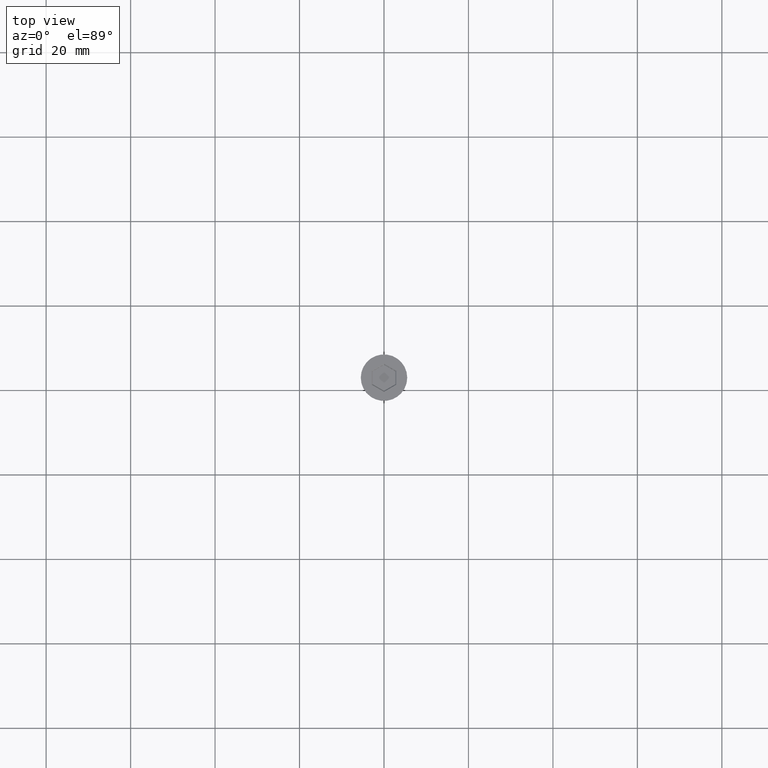
[diagram: clean part render]
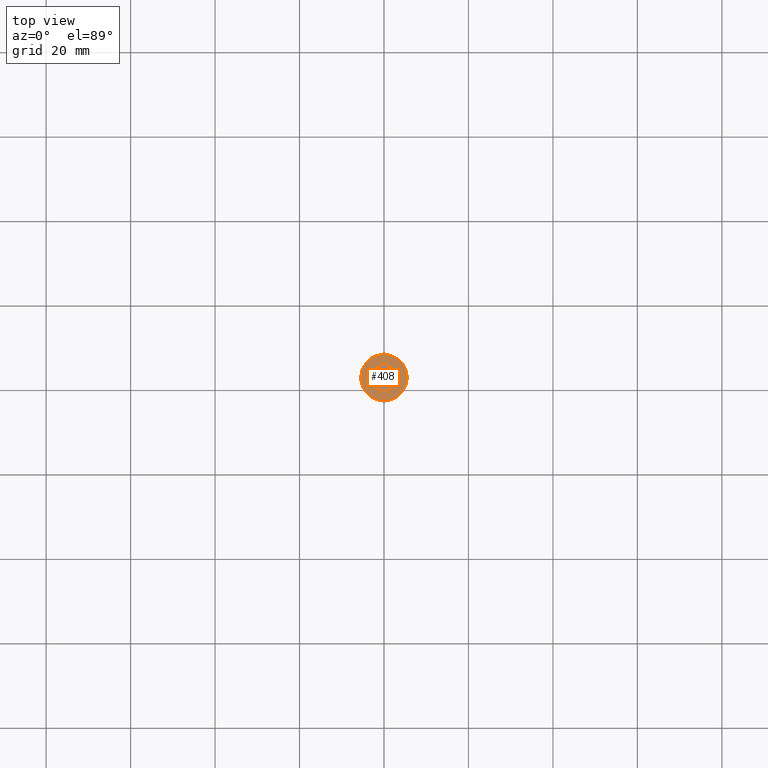
[diagram: same view with one face highlighted and labeled with its STEP entity id]
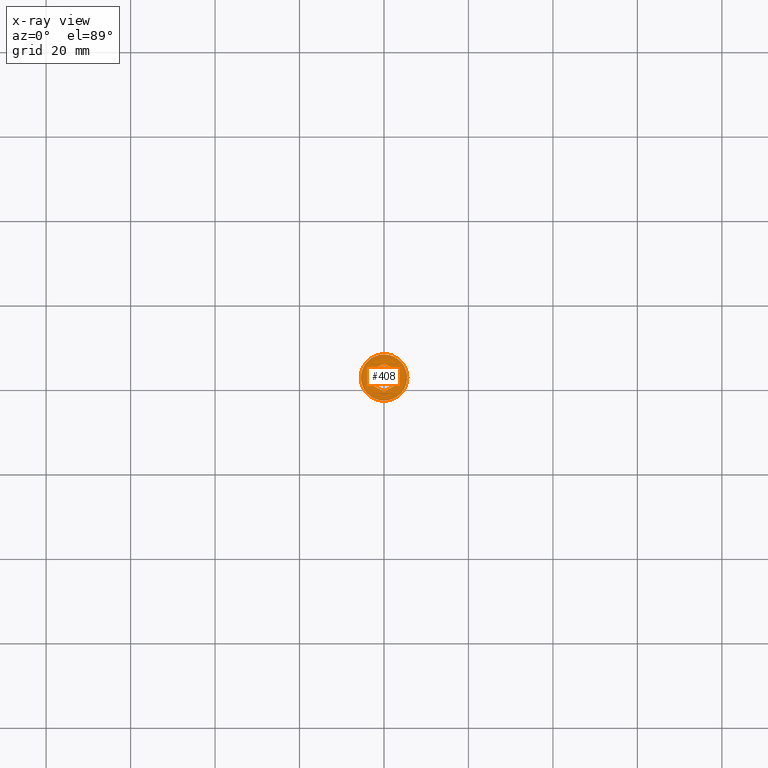
[diagram: x-ray of the same camera — body ghosted, the highlighted face saturated]
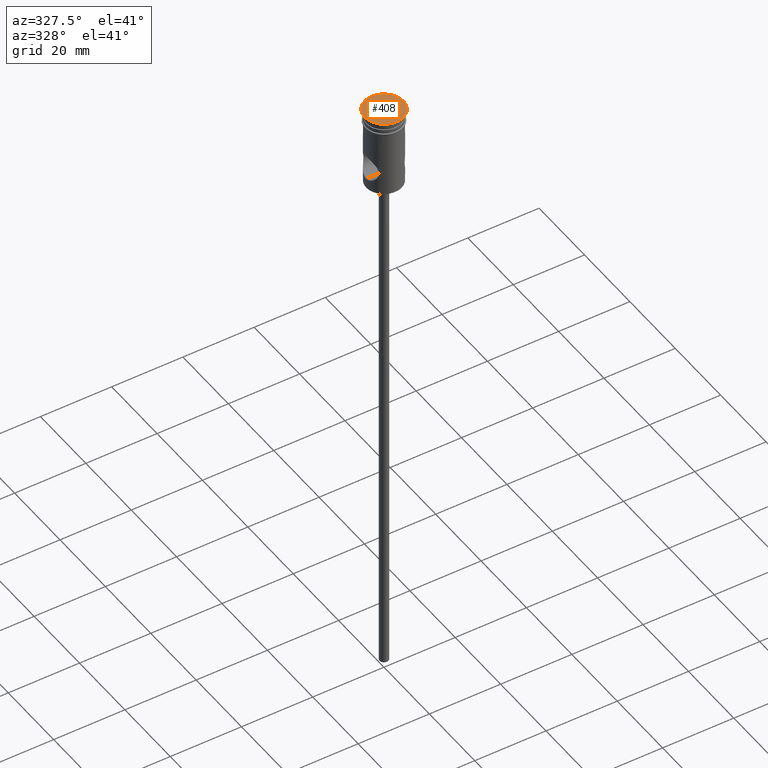
[diagram: same view with one face highlighted and labeled with its STEP entity id]
A machine part, top view. The second image highlights one B-rep face of the part: STEP entity #408.
The next image is the same camera in x-ray: the body ghosted, the highlighted face saturated — about 0% of this face is hidden behind the body in this view.
A second angle (auxiliary view) of the same face is appended — the face is thin or edge-on in the first view.
In plain terms, the highlighted planar face has unit normal (0, -0, 1).
Its self-contained STEP definition (entity closure, byte-faithful):
#60 = CARTESIAN_POINT ( 'NONE',  ( -2.799999999999997158, -1.732050807568871864, 0.000000000000000000 ) ) ;
#88 = VERTEX_POINT ( 'NONE', #1032 ) ;
#147 = LINE ( 'NONE', #505, #1178 ) ;
#168 = VECTOR ( 'NONE', #1218, 1000.000000000000000 ) ;
#169 = CARTESIAN_POINT ( 'NONE',  ( -2.899999999999994138, -1.674315780649910934, 0.000000000000000000 ) ) ;
#170 = VERTEX_POINT ( 'NONE', #934 ) ;
#177 = DIRECTION ( 'NONE',  ( -0.000000000000000000, -0.000000000000000000, 1.000000000000000000 ) ) ;
#184 = CARTESIAN_POINT ( 'NONE',  ( -2.899999999999994138, 1.558845726811988852, 0.000000000000000000 ) ) ;
#189 = EDGE_CURVE ( 'NONE', #88, #905, #147, .T. ) ;
#196 = CARTESIAN_POINT ( 'NONE',  ( -9.683804684061200344E-16, 3.348631561299821868, 0.000000000000000000 ) ) ;
#227 = CARTESIAN_POINT ( 'NONE',  ( 5.500000000000000000, 0.000000000000000000, 0.000000000000000000 ) ) ;
#242 = EDGE_LOOP ( 'NONE', ( #396, #1252 ) ) ;
#294 = LINE ( 'NONE', #525, #1220 ) ;
#299 = DIRECTION ( 'NONE',  ( 1.000000000000000000, 0.000000000000000000, 0.000000000000000000 ) ) ;
#330 = VECTOR ( 'NONE', #946, 1000.000000000000114 ) ;
#347 = VERTEX_POINT ( 'NONE', #169 ) ;
#370 = FACE_BOUND ( 'NONE', #1195, .T. ) ;
#396 = ORIENTED_EDGE ( 'NONE', *, *, #1286, .T. ) ;
#405 = VERTEX_POINT ( 'NONE', #722 ) ;
#408 = ADVANCED_FACE ( 'NONE', ( #370, #1163 ), #737, .T. ) ;
#414 = LINE ( 'NONE', #1322, #168 ) ;
#417 = ORIENTED_EDGE ( 'NONE', *, *, #1420, .T. ) ;
#456 = CARTESIAN_POINT ( 'NONE',  ( 0.000000000000000000, 0.000000000000000000, 0.000000000000000000 ) ) ;
#467 = VECTOR ( 'NONE', #1439, 1000.000000000000000 ) ;
#472 = EDGE_CURVE ( 'NONE', #405, #504, #414, .T. ) ;
#492 = VERTEX_POINT ( 'NONE', #652 ) ;
#504 = VERTEX_POINT ( 'NONE', #196 ) ;
#505 = CARTESIAN_POINT ( 'NONE',  ( 0.09999999999999654998, -3.290896534380861382, 0.000000000000000000 ) ) ;
#525 = CARTESIAN_POINT ( 'NONE',  ( 2.899999999999992362, -1.558845726811989296, 0.000000000000000000 ) ) ;
#561 = ORIENTED_EDGE ( 'NONE', *, *, #1268, .T. ) ;
#593 = ORIENTED_EDGE ( 'NONE', *, *, #842, .T. ) ;
#595 = CARTESIAN_POINT ( 'NONE',  ( 0.000000000000000000, 0.000000000000000000, 0.000000000000000000 ) ) ;
#614 = DIRECTION ( 'NONE',  ( 0.000000000000000000, -0.000000000000000000, 1.000000000000000000 ) ) ;
#644 = LINE ( 'NONE', #184, #1261 ) ;
#649 = DIRECTION ( 'NONE',  ( 0.000000000000000000, 1.000000000000000000, 0.000000000000000000 ) ) ;
#652 = CARTESIAN_POINT ( 'NONE',  ( 2.899999999999992806, 1.674315780649911378, 0.000000000000000000 ) ) ;
#654 = AXIS2_PLACEMENT_3D ( 'NONE', #988, #1433, #766 ) ;
#661 = CARTESIAN_POINT ( 'NONE',  ( -4.552601062339046804E-16, -3.348631561299821868, 0.000000000000000000 ) ) ;
#688 = DIRECTION ( 'NONE',  ( -0.8660254037844387076, -0.4999999999999998890, 0.000000000000000000 ) ) ;
#704 = EDGE_CURVE ( 'NONE', #170, #1190, #863, .T. ) ;
#722 = CARTESIAN_POINT ( 'NONE',  ( -2.899999999999994138, 1.674315780649911600, 0.000000000000000000 ) ) ;
#737 = PLANE ( 'NONE',  #930 ) ;
#766 = DIRECTION ( 'NONE',  ( 1.000000000000000000, 0.000000000000000000, 0.000000000000000000 ) ) ;
#824 = ORIENTED_EDGE ( 'NONE', *, *, #189, .T. ) ;
#842 = EDGE_CURVE ( 'NONE', #905, #347, #1171, .T. ) ;
#863 = CIRCLE ( 'NONE', #1028, 5.500000000000000000 ) ;
#905 = VERTEX_POINT ( 'NONE', #661 ) ;
#916 = ORIENTED_EDGE ( 'NONE', *, *, #472, .T. ) ;
#930 = AXIS2_PLACEMENT_3D ( 'NONE', #595, #614, #1292 ) ;
#934 = CARTESIAN_POINT ( 'NONE',  ( -5.500000000000000000, 6.735557395310442023E-16, 0.000000000000000000 ) ) ;
#946 = DIRECTION ( 'NONE',  ( -0.8660254037844385966, 0.5000000000000001110, 0.000000000000000000 ) ) ;
#988 = CARTESIAN_POINT ( 'NONE',  ( 0.000000000000000000, 0.000000000000000000, 0.000000000000000000 ) ) ;
#994 = LINE ( 'NONE', #1214, #467 ) ;
#1028 = AXIS2_PLACEMENT_3D ( 'NONE', #456, #177, #299 ) ;
#1032 = CARTESIAN_POINT ( 'NONE',  ( 2.899999999999992362, -1.674315780649911822, 0.000000000000000000 ) ) ;
#1074 = EDGE_CURVE ( 'NONE', #347, #405, #644, .T. ) ;
#1163 = FACE_OUTER_BOUND ( 'NONE', #242, .T. ) ;
#1171 = LINE ( 'NONE', #60, #330 ) ;
#1178 = VECTOR ( 'NONE', #688, 1000.000000000000000 ) ;
#1190 = VERTEX_POINT ( 'NONE', #227 ) ;
#1194 = DIRECTION ( 'NONE',  ( -1.391032035867740017E-16, -1.000000000000000000, 0.000000000000000000 ) ) ;
#1195 = EDGE_LOOP ( 'NONE', ( #593, #1285, #916, #561, #417, #824 ) ) ;
#1214 = CARTESIAN_POINT ( 'NONE',  ( 2.799999999999996270, 1.732050807568872086, 0.000000000000000000 ) ) ;
#1218 = DIRECTION ( 'NONE',  ( 0.8660254037844387076, 0.4999999999999998890, 0.000000000000000000 ) ) ;
#1220 = VECTOR ( 'NONE', #1194, 1000.000000000000000 ) ;
#1252 = ORIENTED_EDGE ( 'NONE', *, *, #704, .T. ) ;
#1261 = VECTOR ( 'NONE', #649, 1000.000000000000000 ) ;
#1268 = EDGE_CURVE ( 'NONE', #504, #492, #994, .T. ) ;
#1285 = ORIENTED_EDGE ( 'NONE', *, *, #1074, .T. ) ;
#1286 = EDGE_CURVE ( 'NONE', #1190, #170, #1287, .T. ) ;
#1287 = CIRCLE ( 'NONE', #654, 5.500000000000000000 ) ;
#1292 = DIRECTION ( 'NONE',  ( 1.000000000000000000, 0.000000000000000000, 0.000000000000000000 ) ) ;
#1322 = CARTESIAN_POINT ( 'NONE',  ( -0.09999999999999764633, 3.290896534380861382, 0.000000000000000000 ) ) ;
#1420 = EDGE_CURVE ( 'NONE', #492, #88, #294, .T. ) ;
#1433 = DIRECTION ( 'NONE',  ( -0.000000000000000000, -0.000000000000000000, 1.000000000000000000 ) ) ;
#1439 = DIRECTION ( 'NONE',  ( 0.8660254037844387076, -0.4999999999999998335, 0.000000000000000000 ) ) ;